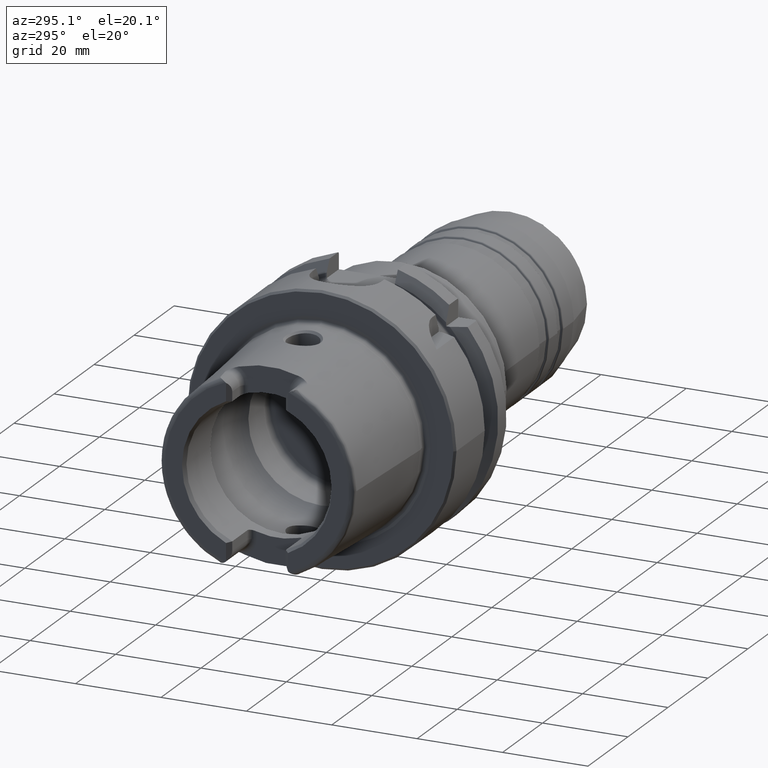
[diagram: clean part render]
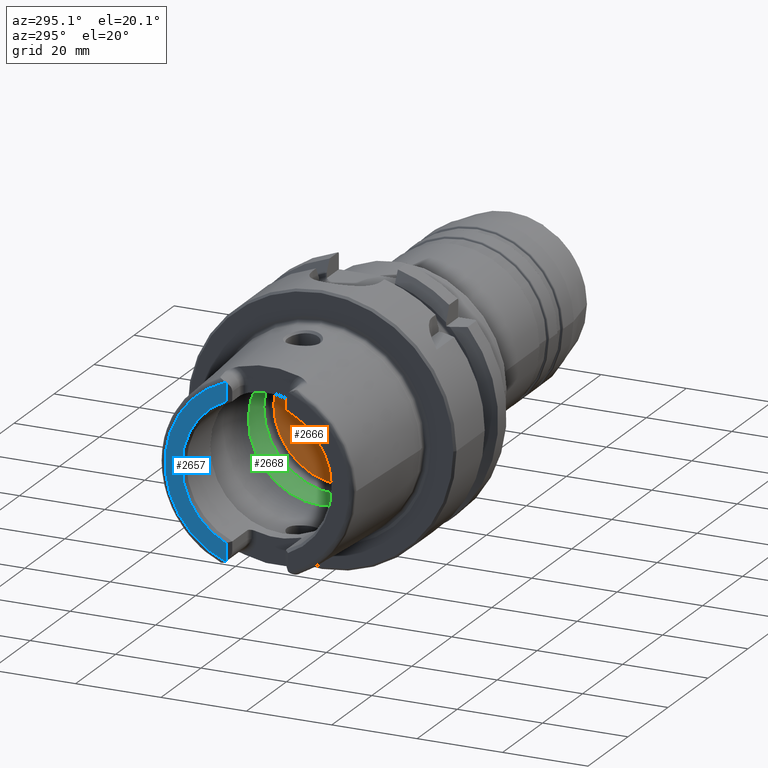
[diagram: same view with three faces highlighted in distinct colors, each labeled with its STEP entity id]
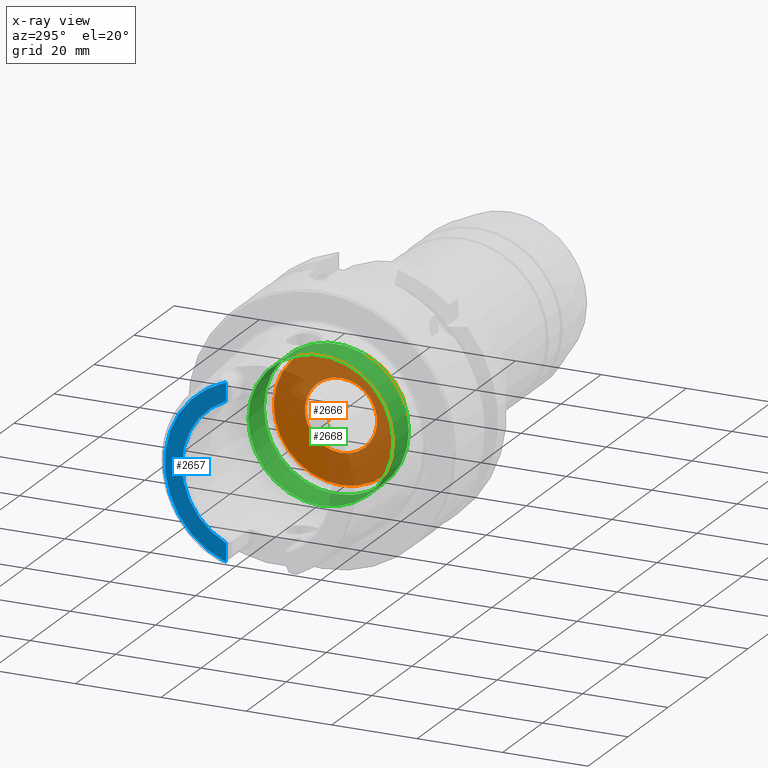
[diagram: x-ray of the same camera — body ghosted, the three highlighted faces saturated]
A machine part, auxiliary view with three faces highlighted in distinct colors.
The next image is the same camera in x-ray (body ghosted, the three faces saturated) — at least one of them is partly hidden behind the body in this view.
Their STEP definitions:

[orange] entity #2666 — the highlighted planar face has unit normal (1, 0, 0).
#159=FACE_BOUND('',#474,.T.);
#201=PLANE('',#3034);
#329=FACE_OUTER_BOUND('',#473,.T.);
#473=EDGE_LOOP('',(#2445,#2446));
#474=EDGE_LOOP('',(#2447,#2448));
#719=CIRCLE('',#2700,8.458734);
#720=CIRCLE('',#2701,8.458734);
#923=CIRCLE('',#3035,15.75);
#924=CIRCLE('',#3036,15.75);
#945=VERTEX_POINT('',#3924);
#946=VERTEX_POINT('',#3925);
#1219=VERTEX_POINT('',#5543);
#1220=VERTEX_POINT('',#5544);
#1240=EDGE_CURVE('',#945,#946,#719,.T.);
#1241=EDGE_CURVE('',#946,#945,#720,.T.);
#1634=EDGE_CURVE('',#1219,#1220,#923,.T.);
#1635=EDGE_CURVE('',#1220,#1219,#924,.T.);
#2445=ORIENTED_EDGE('',*,*,#1634,.T.);
#2446=ORIENTED_EDGE('',*,*,#1635,.T.);
#2447=ORIENTED_EDGE('',*,*,#1240,.T.);
#2448=ORIENTED_EDGE('',*,*,#1241,.T.);
#2666=ADVANCED_FACE('',(#329,#159),#201,.F.);
#2700=AXIS2_PLACEMENT_3D('',#3926,#3075,#3076);
#2701=AXIS2_PLACEMENT_3D('',#3927,#3077,#3078);
#3034=AXIS2_PLACEMENT_3D('',#5542,#3853,#3854);
#3035=AXIS2_PLACEMENT_3D('',#5545,#3855,#3856);
#3036=AXIS2_PLACEMENT_3D('',#5546,#3857,#3858);
#3075=DIRECTION('center_axis',(1.,0.,0.));
#3076=DIRECTION('ref_axis',(0.,0.,1.));
#3077=DIRECTION('center_axis',(1.,0.,0.));
#3078=DIRECTION('ref_axis',(0.,0.,1.));
#3853=DIRECTION('center_axis',(1.,0.,0.));
#3854=DIRECTION('ref_axis',(0.,0.,-1.));
#3855=DIRECTION('center_axis',(-1.,0.,0.));
#3856=DIRECTION('ref_axis',(0.,0.,1.));
#3857=DIRECTION('center_axis',(-1.,0.,0.));
#3858=DIRECTION('ref_axis',(0.,0.,1.));
#3924=CARTESIAN_POINT('',(10.,0.,8.458734));
#3925=CARTESIAN_POINT('',(10.,-1.03589615179389E-15,-8.458734));
#3926=CARTESIAN_POINT('Origin',(10.,0.,0.));
#3927=CARTESIAN_POINT('Origin',(10.,0.,0.));
#5542=CARTESIAN_POINT('Origin',(10.,15.75,0.));
#5543=CARTESIAN_POINT('',(10.,15.75,0.));
#5544=CARTESIAN_POINT('',(10.,-1.92881870865708E-15,-15.75));
#5545=CARTESIAN_POINT('Origin',(10.,0.,0.));
#5546=CARTESIAN_POINT('Origin',(10.,0.,0.));

[blue] entity #2657 — the highlighted planar face has unit normal (-1, 0, 0).
#198=PLANE('',#3014);
#320=FACE_OUTER_BOUND('',#464,.T.);
#464=EDGE_LOOP('',(#2392,#2393,#2394,#2395,#2396,#2397));
#516=LINE('',#4256,#632);
#526=LINE('',#4349,#642);
#632=VECTOR('',#3412,10.);
#642=VECTOR('',#3450,10.);
#830=CIRCLE('',#2855,2.88);
#836=CIRCLE('',#2870,2.88);
#911=CIRCLE('',#3013,17.5773502691896);
#912=CIRCLE('',#3015,21.5760400159857);
#1059=VERTEX_POINT('',#4249);
#1062=VERTEX_POINT('',#4254);
#1065=VERTEX_POINT('',#4264);
#1080=VERTEX_POINT('',#4346);
#1081=VERTEX_POINT('',#4348);
#1086=VERTEX_POINT('',#4367);
#1388=EDGE_CURVE('',#1062,#1059,#516,.T.);
#1392=EDGE_CURVE('',#1065,#1059,#830,.T.);
#1410=EDGE_CURVE('',#1080,#1081,#526,.T.);
#1417=EDGE_CURVE('',#1080,#1086,#836,.T.);
#1621=EDGE_CURVE('',#1081,#1062,#911,.T.);
#1622=EDGE_CURVE('',#1065,#1086,#912,.T.);
#2392=ORIENTED_EDGE('',*,*,#1388,.F.);
#2393=ORIENTED_EDGE('',*,*,#1621,.F.);
#2394=ORIENTED_EDGE('',*,*,#1410,.F.);
#2395=ORIENTED_EDGE('',*,*,#1417,.T.);
#2396=ORIENTED_EDGE('',*,*,#1622,.F.);
#2397=ORIENTED_EDGE('',*,*,#1392,.T.);
#2657=ADVANCED_FACE('',(#320),#198,.T.);
#2855=AXIS2_PLACEMENT_3D('',#4265,#3420,#3421);
#2870=AXIS2_PLACEMENT_3D('',#4380,#3459,#3460);
#3013=AXIS2_PLACEMENT_3D('',#5514,#3810,#3811);
#3014=AXIS2_PLACEMENT_3D('',#5515,#3812,#3813);
#3015=AXIS2_PLACEMENT_3D('',#5516,#3814,#3815);
#3412=DIRECTION('',(0.,0.,-1.));
#3420=DIRECTION('center_axis',(-1.,0.,0.));
#3421=DIRECTION('ref_axis',(0.,-0.453346760926793,0.891334232685576));
#3450=DIRECTION('',(0.,1.58830189502884E-16,-1.));
#3459=DIRECTION('center_axis',(-1.,0.,0.));
#3460=DIRECTION('ref_axis',(0.,1.,0.));
#3810=DIRECTION('center_axis',(-1.,0.,0.));
#3811=DIRECTION('ref_axis',(0.,-1.,0.));
#3812=DIRECTION('center_axis',(-1.,0.,0.));
#3813=DIRECTION('ref_axis',(0.,0.,1.));
#3814=DIRECTION('center_axis',(1.,0.,0.));
#3815=DIRECTION('ref_axis',(0.,0.,-1.));
#4249=CARTESIAN_POINT('',(-32.,7.27,-20.1717424229271));
#4254=CARTESIAN_POINT('',(-32.,7.27,-16.003447831195));
#4256=CARTESIAN_POINT('',(-32.,7.27,-5.5));
#4264=CARTESIAN_POINT('',(-32.,7.39118810947246,-20.2705658801576));
#4265=CARTESIAN_POINT('Origin',(-32.,9.15,-17.99));
#4346=CARTESIAN_POINT('',(-32.,7.27,20.1717424229271));
#4348=CARTESIAN_POINT('',(-32.,7.27,16.003447831195));
#4349=CARTESIAN_POINT('',(-32.,7.27,8.995));
#4367=CARTESIAN_POINT('',(-32.,7.39118810947246,20.2705658801576));
#4380=CARTESIAN_POINT('Origin',(-32.,9.15,17.99));
#5514=CARTESIAN_POINT('Origin',(-32.,0.,0.));
#5515=CARTESIAN_POINT('Origin',(-32.,21.5760400159857,0.));
#5516=CARTESIAN_POINT('Origin',(-32.,0.,0.));

[green] entity #2668 — the highlighted cylindrical surface (bore or boss wall) has radius 17 mm, axis along (-1, 0, 0).
#331=FACE_OUTER_BOUND('',#476,.T.);
#476=EDGE_LOOP('',(#2456,#2457,#2458,#2459,#2460,#2461,#2462,#2463));
#595=LINE('',#5556,#711);
#711=VECTOR('',#3871,17.);
#850=CIRCLE('',#2890,17.);
#851=CIRCLE('',#2891,17.);
#852=CIRCLE('',#2892,17.);
#926=CIRCLE('',#3039,17.);
#927=CIRCLE('',#3040,17.);
#928=CIRCLE('',#3041,17.);
#1117=VERTEX_POINT('',#4898);
#1118=VERTEX_POINT('',#4899);
#1119=VERTEX_POINT('',#4901);
#1221=VERTEX_POINT('',#5548);
#1222=VERTEX_POINT('',#5550);
#1223=VERTEX_POINT('',#5552);
#1461=EDGE_CURVE('',#1117,#1118,#850,.T.);
#1462=EDGE_CURVE('',#1119,#1117,#851,.T.);
#1463=EDGE_CURVE('',#1118,#1119,#852,.T.);
#1637=EDGE_CURVE('',#1221,#1222,#926,.T.);
#1638=EDGE_CURVE('',#1222,#1223,#927,.T.);
#1639=EDGE_CURVE('',#1223,#1221,#928,.T.);
#1640=EDGE_CURVE('',#1222,#1119,#595,.T.);
#2456=ORIENTED_EDGE('',*,*,#1639,.F.);
#2457=ORIENTED_EDGE('',*,*,#1638,.F.);
#2458=ORIENTED_EDGE('',*,*,#1640,.T.);
#2459=ORIENTED_EDGE('',*,*,#1462,.T.);
#2460=ORIENTED_EDGE('',*,*,#1461,.T.);
#2461=ORIENTED_EDGE('',*,*,#1463,.T.);
#2462=ORIENTED_EDGE('',*,*,#1640,.F.);
#2463=ORIENTED_EDGE('',*,*,#1637,.F.);
#2538=CYLINDRICAL_SURFACE('',#3042,17.);
#2668=ADVANCED_FACE('',(#331),#2538,.F.);
#2890=AXIS2_PLACEMENT_3D('',#4900,#3509,#3510);
#2891=AXIS2_PLACEMENT_3D('',#4902,#3511,#3512);
#2892=AXIS2_PLACEMENT_3D('',#4903,#3513,#3514);
#3039=AXIS2_PLACEMENT_3D('',#5551,#3863,#3864);
#3040=AXIS2_PLACEMENT_3D('',#5553,#3865,#3866);
#3041=AXIS2_PLACEMENT_3D('',#5554,#3867,#3868);
#3042=AXIS2_PLACEMENT_3D('',#5555,#3869,#3870);
#3509=DIRECTION('center_axis',(-1.,0.,0.));
#3510=DIRECTION('ref_axis',(0.,0.,1.));
#3511=DIRECTION('center_axis',(-1.,0.,0.));
#3512=DIRECTION('ref_axis',(0.,0.,1.));
#3513=DIRECTION('center_axis',(-1.,0.,0.));
#3514=DIRECTION('ref_axis',(0.,0.,1.));
#3863=DIRECTION('center_axis',(-1.,0.,0.));
#3864=DIRECTION('ref_axis',(0.,0.,1.));
#3865=DIRECTION('center_axis',(-1.,0.,0.));
#3866=DIRECTION('ref_axis',(0.,0.,1.));
#3867=DIRECTION('center_axis',(-1.,0.,0.));
#3868=DIRECTION('ref_axis',(0.,0.,1.));
#3869=DIRECTION('center_axis',(-1.,0.,0.));
#3870=DIRECTION('ref_axis',(0.,1.,0.));
#3871=DIRECTION('',(-1.,0.,0.));
#4898=CARTESIAN_POINT('',(-0.055002001601602,17.,0.));
#4899=CARTESIAN_POINT('',(-0.0550020016016017,-2.0818995585505E-15,-17.));
#4900=CARTESIAN_POINT('Origin',(-0.0550020016016017,0.,0.));
#4901=CARTESIAN_POINT('',(-0.0550020016016017,-17.,2.0818995585505E-15));
#4902=CARTESIAN_POINT('Origin',(-0.0550020016016017,0.,0.));
#4903=CARTESIAN_POINT('Origin',(-0.0550020016016017,0.,0.));
#5548=CARTESIAN_POINT('',(7.67084380241115,-2.0818995585505E-15,-17.));
#5550=CARTESIAN_POINT('',(7.67084380241115,-17.,2.0818995585505E-15));
#5551=CARTESIAN_POINT('Origin',(7.67084380241115,0.,0.));
#5552=CARTESIAN_POINT('',(7.67084380241115,17.,0.));
#5553=CARTESIAN_POINT('Origin',(7.67084380241115,0.,0.));
#5554=CARTESIAN_POINT('Origin',(7.67084380241115,0.,0.));
#5555=CARTESIAN_POINT('Origin',(3.80792090040477,0.,0.));
#5556=CARTESIAN_POINT('',(3.80792090040477,-17.,2.0818995585505E-15));